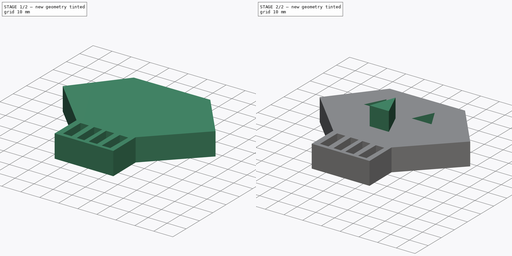
[diagram: build sequence overview — one tinted view per stage of 2, left to right]
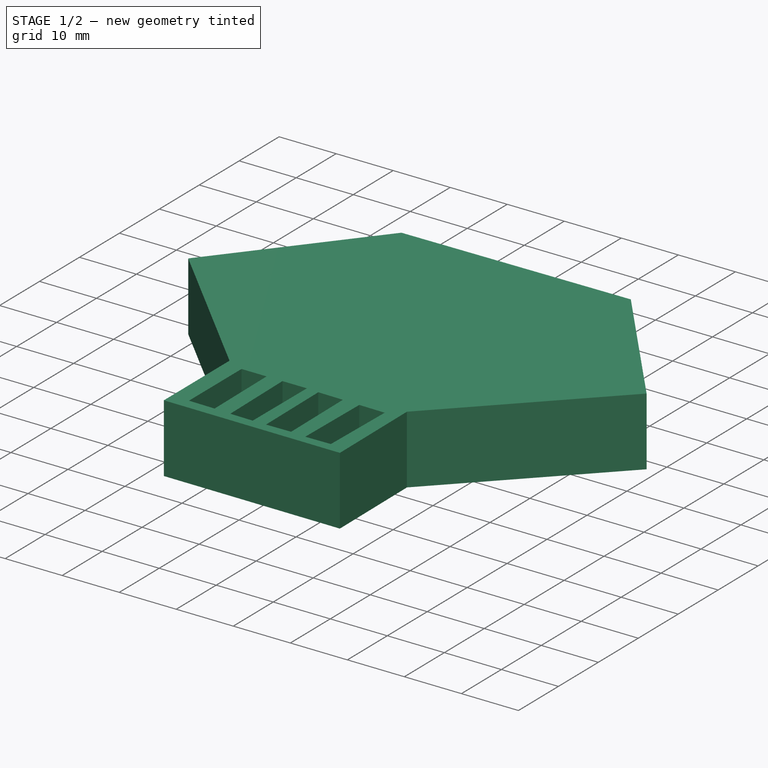
[diagram: stage 1 of 2 — iso view after this stage's code; geometry added in this stage tinted green]
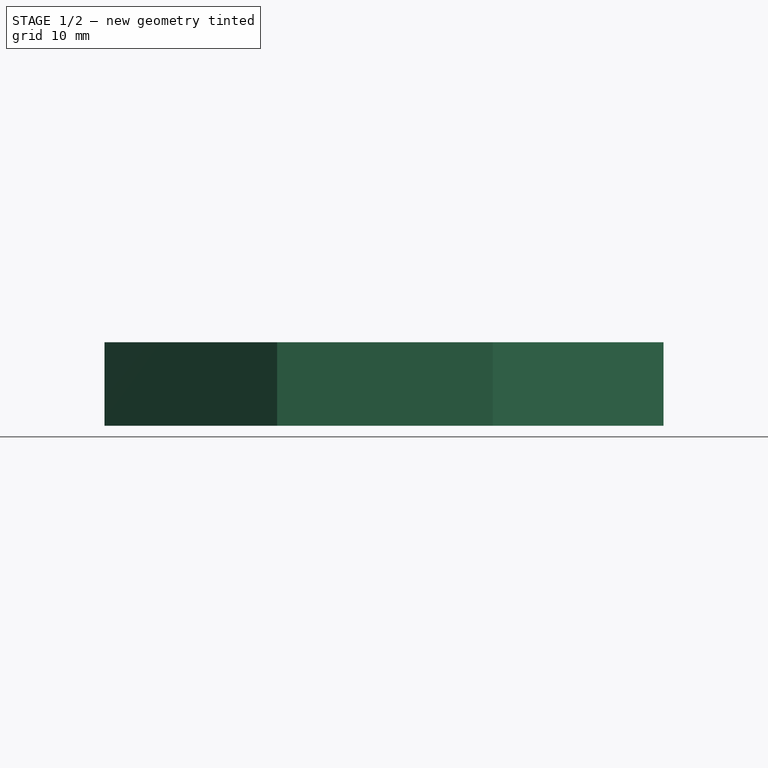
[diagram: stage 1 of 2 — front view after this stage's code; geometry added in this stage tinted green]
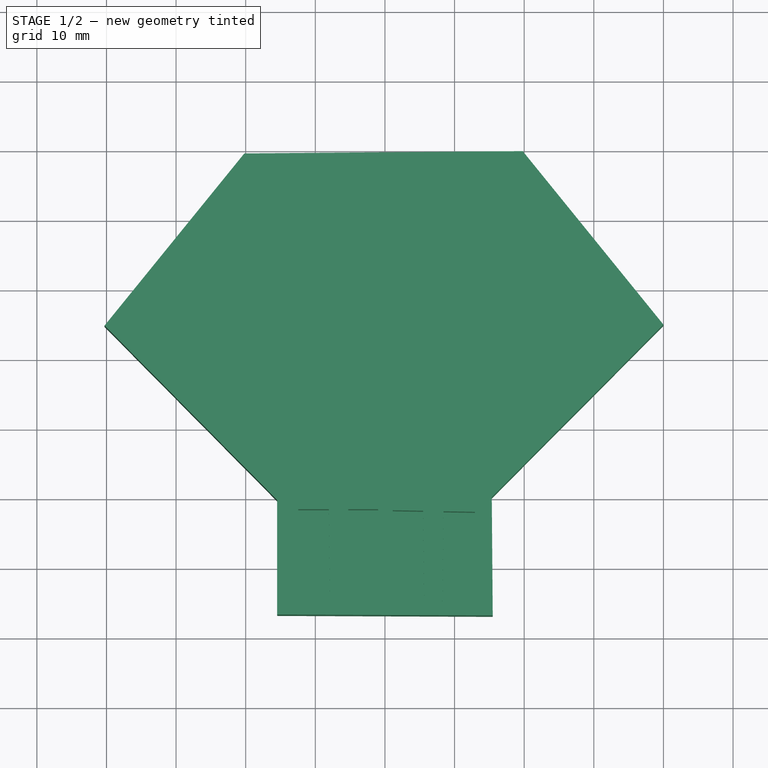
[diagram: stage 1 of 2 — top view after this stage's code; geometry added in this stage tinted green]
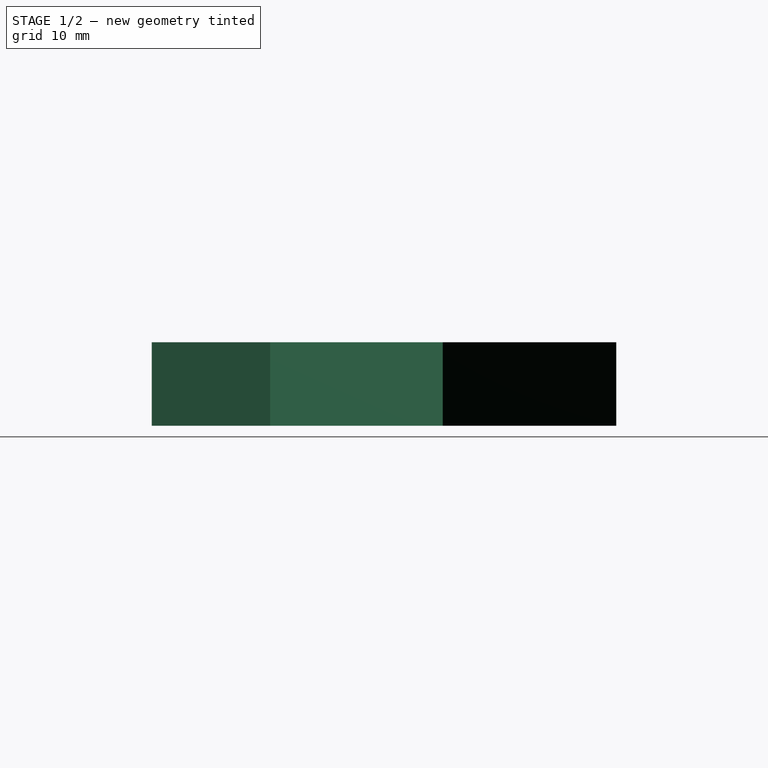
[diagram: stage 1 of 2 — right view after this stage's code; geometry added in this stage tinted green]
FCSTD DOCUMENT  (FreeCAD 0.21R33771 (Git))
Label: OJT1_T17R01_calavera
License: All rights reserved
LicenseURL: http://en.wikipedia.org/wiki/All_rights_reserved
objects: Sketcher::SketchObject×4, PartDesign::Pad×2, PartDesign::Pocket×2, PartDesign::Body×1
note: 13 computed .brp shape members not serialized (recipe doc carries the construction recipe); baked Part::Feature solids carry a one-line shape summary decoded from their .brp

FEATURE [Sketcher::SketchObject] Sketch  label="cap"
  FullyConstrained = false
  MapMode = 5
  Support = -> [XY_Plane]
  sketch-geometry (8):
    g0: LineSegment StartX=-20.2028 StartY=49.517 StartZ=0 EndX=19.7855 EndY=49.8516 EndZ=0
    g1: LineSegment StartX=19.7855 StartY=49.8516 StartZ=0 EndX=40 EndY=24.9315 EndZ=0
    g2: LineSegment StartX=40 StartY=24.9315 StartZ=0 EndX=15.3425 EndY=0.136983 EndZ=0
    g3: LineSegment StartX=15.3425 StartY=0.136983 StartZ=0 EndX=15.4794 EndY=-16.8493 EndZ=0
    g4: LineSegment StartX=15.4794 StartY=-16.8493 StartZ=0 EndX=-15.4795 EndY=-16.7123 EndZ=0
    g5: LineSegment StartX=-15.4795 StartY=-16.7123 StartZ=0 EndX=-15.4794 EndY=-0.273973 EndZ=0
    g6: LineSegment StartX=-15.4794 StartY=-0.273973 StartZ=0 EndX=-40.274 EndY=24.7945 EndZ=0
    g7: LineSegment StartX=-40.274 StartY=24.7945 StartZ=0 EndX=-20.2028 EndY=49.517 EndZ=0
  constraints (8):
    c: Coincident(g0,g1)
    c: Coincident(g1,g2)
    c: Coincident(g2,g3)
    c: Coincident(g3,g4)
    c: Coincident(g4,g5)
    c: Coincident(g5,g6)
    c: Coincident(g6,g7)
    c: Coincident(g7,g0)
FEATURE [PartDesign::Pad] Pad
  Direction = (0,0,1)
  Length = 12
  Length2 = 10
  Profile = -> Sketch
  ReferenceAxis = -> Sketch [N_Axis]
  Type = 0
FEATURE [Sketcher::SketchObject] Sketch001  label="dents"
  FullyConstrained = false
  MapMode = 5
  Placement = pos=(0,0,12) rot=(0,0,1;0rad)
  Support = -> [Pad]
  sketch-geometry (16):
    g0: LineSegment StartX=-12.4514 StartY=-1.59435 StartZ=0 EndX=-12.4514 EndY=-14.745 EndZ=0
    g1: LineSegment StartX=-12.4514 StartY=-14.745 StartZ=0 EndX=-7.90248 EndY=-14.8272 EndZ=0
    g2: LineSegment StartX=-7.90248 StartY=-14.8272 StartZ=0 EndX=-8.05284 EndY=-1.59554 EndZ=0
    g3: LineSegment StartX=-8.05284 StartY=-1.59554 StartZ=0 EndX=-12.4514 EndY=-1.59435 EndZ=0
    g4: LineSegment StartX=-5.27119 StartY=-1.59554 StartZ=0 EndX=-5.04565 EndY=-14.9775 EndZ=0
    g5: LineSegment StartX=-5.04565 StartY=-14.9775 StartZ=0 EndX=-1.06112 EndY=-15.0527 EndZ=0
    g6: LineSegment StartX=-1.06112 StartY=-15.0527 StartZ=0 EndX=-0.985945 EndY=-1.59554 EndZ=0
    g7: LineSegment StartX=-0.985945 StartY=-1.59554 StartZ=0 EndX=-5.27119 EndY=-1.59554 EndZ=0
    g8: LineSegment StartX=1.11908 StartY=-1.7459 StartZ=0 EndX=1.26945 EndY=-15.0527 EndZ=0
    g9: LineSegment StartX=1.26945 StartY=-15.0527 StartZ=0 EndX=5.62986 EndY=-14.9775 EndZ=0
    g10: LineSegment StartX=5.62986 StartY=-14.9775 StartZ=0 EndX=5.4795 EndY=-1.82108 EndZ=0
    g11: LineSegment StartX=5.4795 StartY=-1.82108 StartZ=0 EndX=1.11908 EndY=-1.7459 EndZ=0
    g12: LineSegment StartX=8.41151 StartY=-1.89626 StartZ=0 EndX=8.25071 EndY=-15.2084 EndZ=0
    g13: LineSegment StartX=8.25071 StartY=-15.2084 StartZ=0 EndX=12.6968 EndY=-15.1279 EndZ=0
    g14: LineSegment StartX=12.6968 StartY=-15.1279 StartZ=0 EndX=12.9223 EndY=-1.97144 EndZ=0
    g15: LineSegment StartX=12.9223 StartY=-1.97144 StartZ=0 EndX=8.41151 EndY=-1.89626 EndZ=0
  constraints (16):
    c: Coincident(g0,g1)
    c: Coincident(g1,g2)
    c: Coincident(g2,g3)
    c: Coincident(g3,g0)
    c: Coincident(g4,g5)
    c: Coincident(g5,g6)
    c: Coincident(g6,g7)
    c: Coincident(g7,g4)
    c: Coincident(g8,g9)
    c: Coincident(g9,g10)
    c: Coincident(g10,g11)
    c: Coincident(g11,g8)
    c: Coincident(g12,g13)
    c: Coincident(g13,g14)
    c: Coincident(g14,g15)
    c: Coincident(g15,g12)
FEATURE [PartDesign::Pocket] Pocket
  BaseFeature = -> Pad
  Direction = (0,0,-1)
  Length = 8
  Length2 = 5
  Profile = -> Sketch001
  ReferenceAxis = -> Sketch001 [N_Axis]
  Type = 0
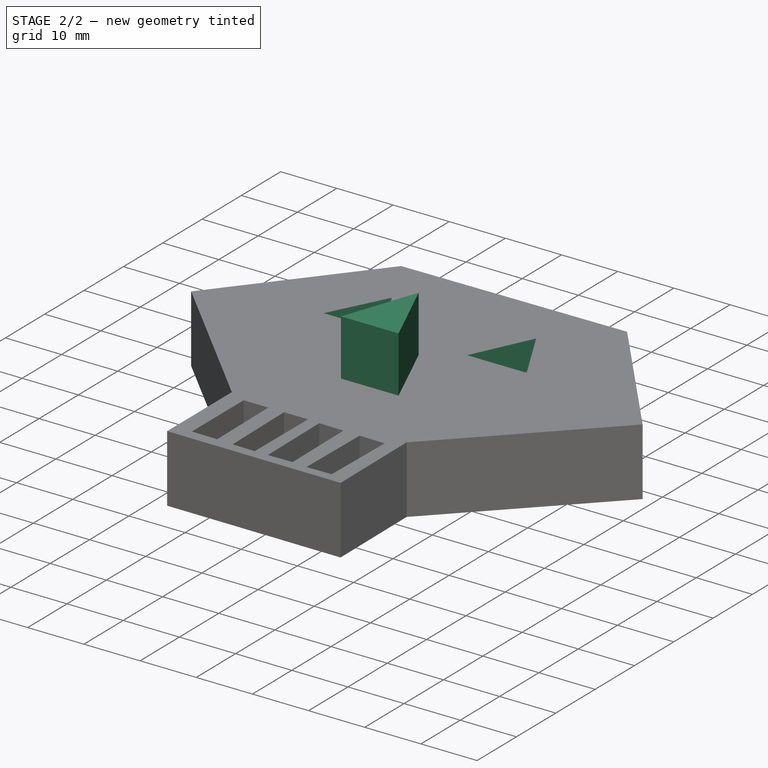
[diagram: stage 2 of 2 — iso view after this stage's code; geometry added in this stage tinted green]
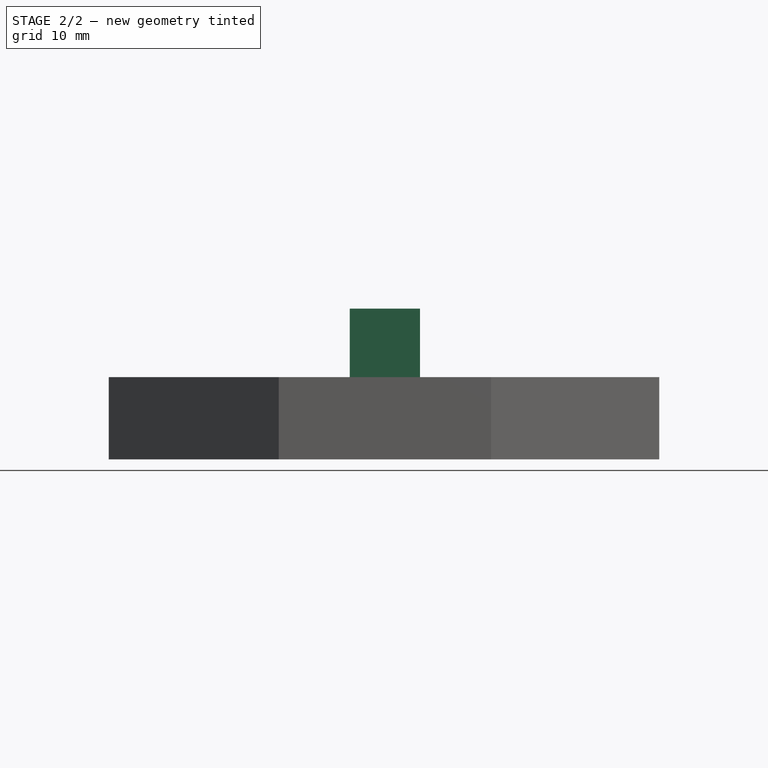
[diagram: stage 2 of 2 — front view after this stage's code; geometry added in this stage tinted green]
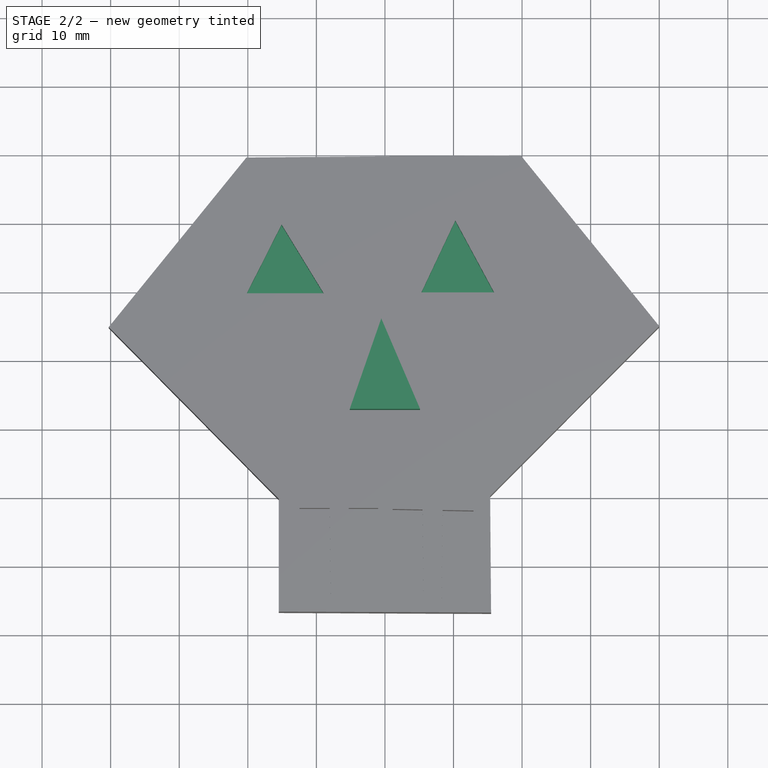
[diagram: stage 2 of 2 — top view after this stage's code; geometry added in this stage tinted green]
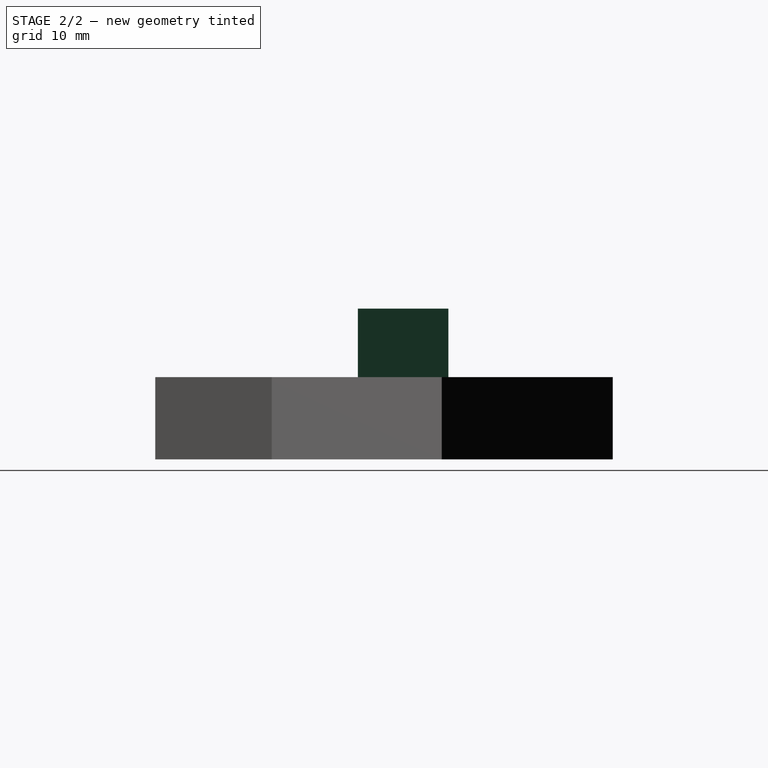
[diagram: stage 2 of 2 — right view after this stage's code; geometry added in this stage tinted green]
FEATURE [Sketcher::SketchObject] Sketch002  label="ulls"
  FullyConstrained = false
  MapMode = 5
  Placement = pos=(0,0,12) rot=(0,0,1;0rad)
  Support = -> [Pocket]
  sketch-geometry (6):
    g0: LineSegment StartX=-15.0681 StartY=39.7358 StartZ=0 EndX=-20.1347 EndY=29.7205 EndZ=0
    g1: LineSegment StartX=-20.1347 StartY=29.7205 StartZ=0 EndX=-8.94115 EndY=29.7205 EndZ=0
    g2: LineSegment StartX=-8.94115 StartY=29.7205 StartZ=0 EndX=-15.0681 EndY=39.7358 EndZ=0
    g3: LineSegment StartX=5.31583 StartY=29.8384 StartZ=0 EndX=15.9202 EndY=29.8384 EndZ=0
    g4: LineSegment StartX=15.9202 StartY=29.8384 StartZ=0 EndX=10.2645 EndY=40.3249 EndZ=0
    g5: LineSegment StartX=10.2645 StartY=40.3249 StartZ=0 EndX=5.31583 EndY=29.8384 EndZ=0
  constraints (8):
    c: Coincident(g0,g1)
    c: Horizontal(g1)
    c: Coincident(g1,g2)
    c: Coincident(g2,g0)
    c: Horizontal(g3)
    c: Coincident(g3,g4)
    c: Coincident(g4,g5)
    c: Coincident(g5,g3)
FEATURE [PartDesign::Pocket] Pocket001
  BaseFeature = -> Pocket
  Direction = (0,0,-1)
  Length = 5
  Length2 = 5
  Profile = -> Sketch002
  ReferenceAxis = -> Sketch002 [N_Axis]
  Type = 0
FEATURE [Sketcher::SketchObject] Sketch003  label="nas"
  FullyConstrained = false
  MapMode = 5
  Placement = pos=(0,0,12) rot=(0,0,1;0rad)
  Support = -> [Pocket001]
  sketch-geometry (3):
    g0: LineSegment StartX=-0.533761 StartY=25.8849 StartZ=0 EndX=-5.12905 EndY=12.6884 EndZ=0
    g1: LineSegment StartX=-5.12905 StartY=12.6884 StartZ=0 EndX=5.12183 EndY=12.6884 EndZ=0
    g2: LineSegment StartX=5.12183 StartY=12.6884 StartZ=0 EndX=-0.533761 EndY=25.8849 EndZ=0
  constraints (4):
    c: Coincident(g0,g1)
    c: Horizontal(g1)
    c: Coincident(g1,g2)
    c: Coincident(g2,g0)
FEATURE [PartDesign::Pad] Pad001
  BaseFeature = -> Pocket001
  Direction = (0,0,1)
  Length = 10
  Length2 = 10
  Profile = -> Sketch003
  ReferenceAxis = -> Sketch003 [N_Axis]
  Type = 0
FEATURE [PartDesign::Body] Body
  Group = -> [Sketch,Pad,Sketch001,Pocket,Sketch002,Pocket001,Sketch003,Pad001]
  Origin = -> Origin
  Tip = -> Pad001
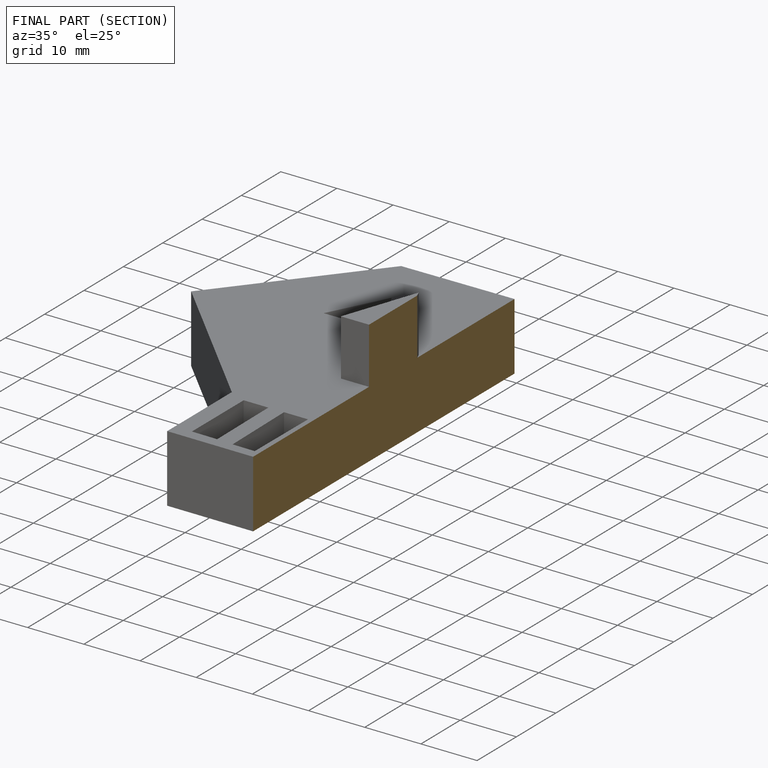
[diagram: finished part — half-section view (interior)]
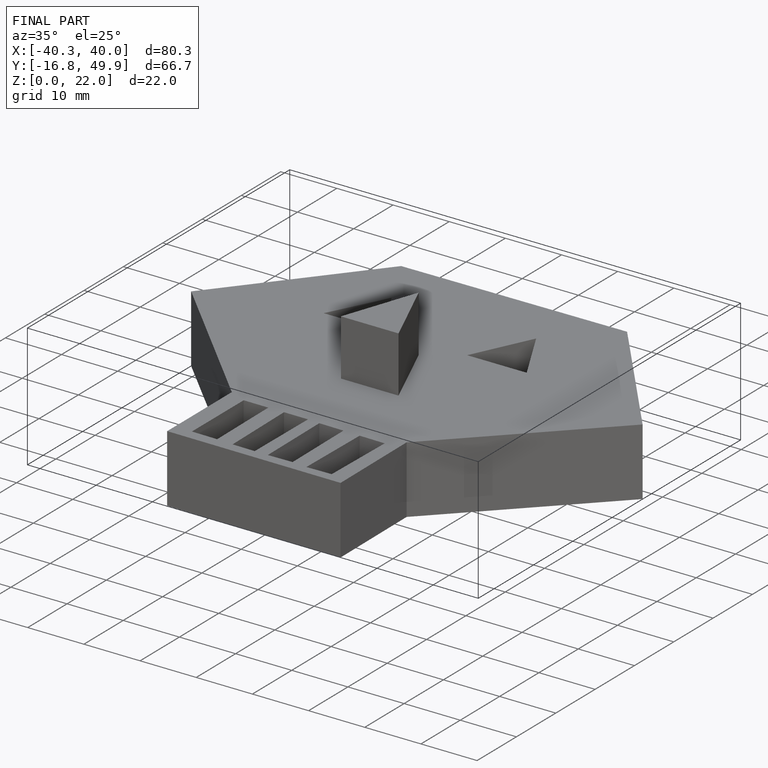
[diagram: finished part — iso view with bounding-box wireframe]
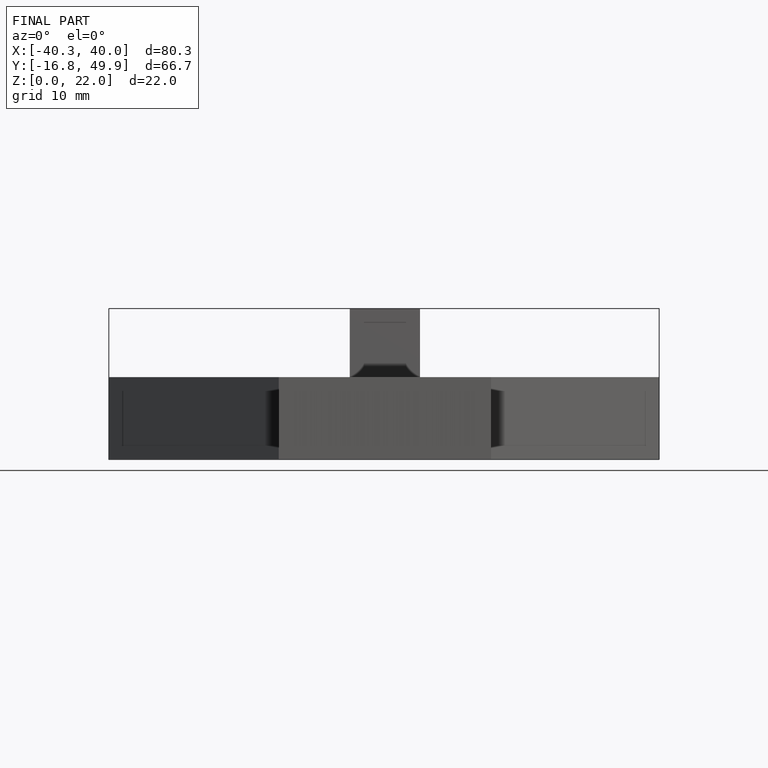
[diagram: finished part — front view with bounding-box wireframe]
